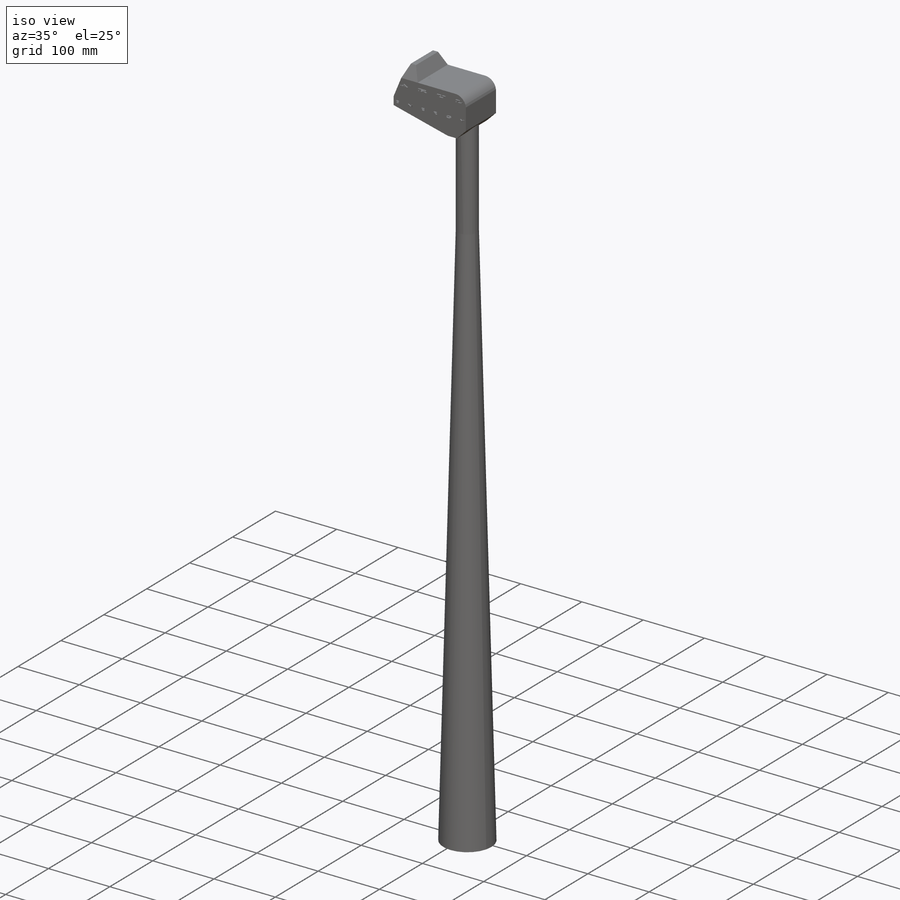
[diagram: iso view]
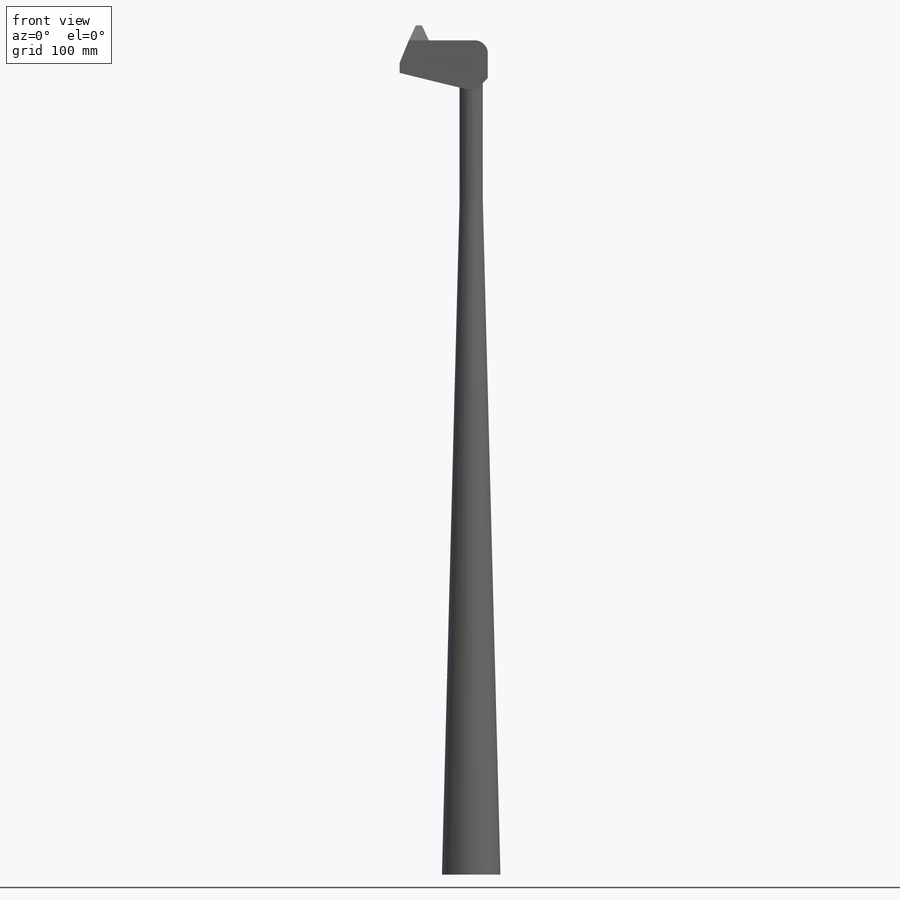
[diagram: front view]
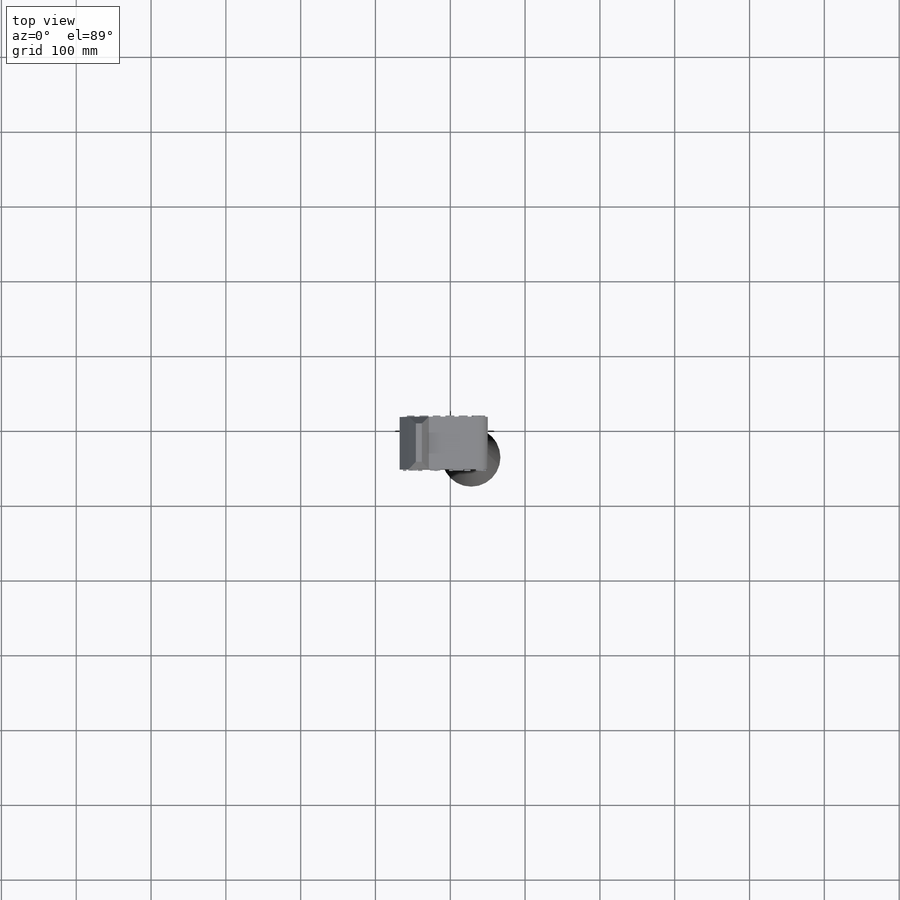
[diagram: top view]
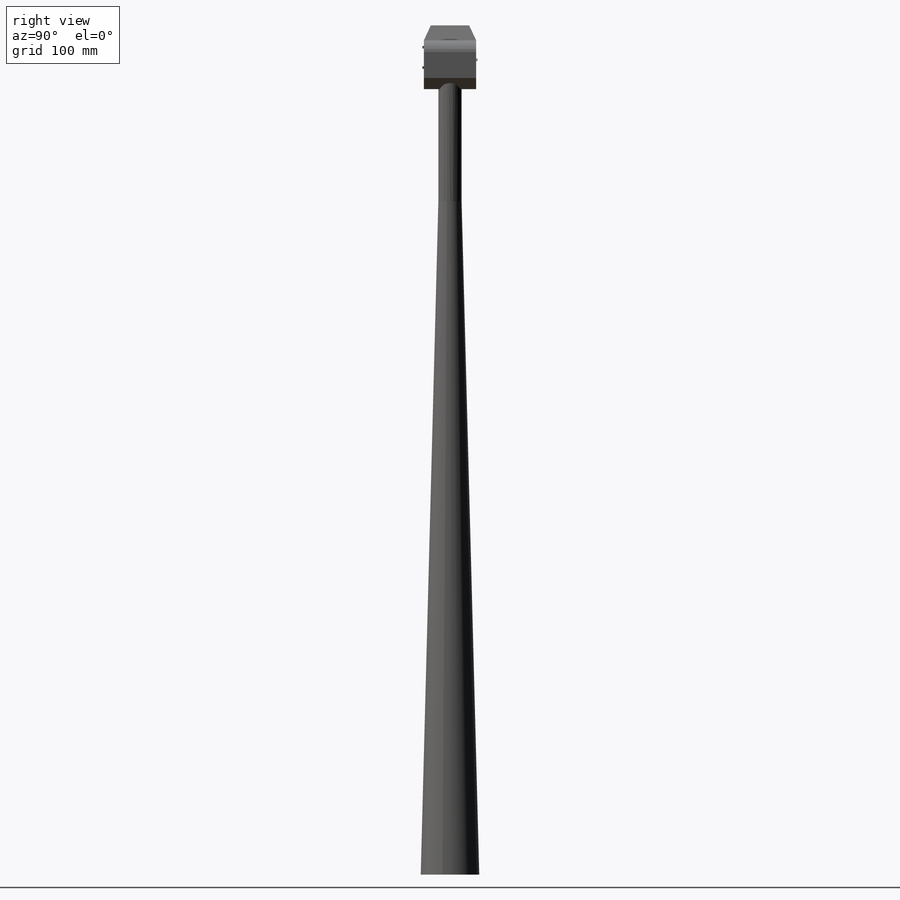
[diagram: right view]
SOLIDWORKS PART (.sldprt)
format: sldprt  version: not decoded by parser v0  size: 573,440 bytes
history: native  units: mm
features: sketch x7, extrude x7, material x1 (+12 scaffold rows collapsed)
feature tree (27):
  scaffold x12  (default folders/planes/origin — collapsed)
  material  "Material <not specified>"
  sketch  "Sketch1"  dims[D1=65.0mm D2=100.0mm]
  extrude  "Boss-Extrude1"  Depth=70mm
  sketch  "Sketch3"
  extrude  "Boss-Extrude2"  Depth=20mm
  sketch  "Sketch4"
  extrude  "Boss-Extrude3"  Depth=150mm
  sketch  "Sketch5"
  extrude  "Boss-Extrude4"  Depth=900mm
  sketch  "Sketch6"
  extrude  "Boss-Extrude5"  Depth=2mm
  sketch  "Sketch7"
  extrude  "Boss-Extrude6"  Depth=2mm
  sketch  "Sketch8"
  extrude  "Boss-Extrude7"  Depth=2mm
decode coverage: 8 of 14 modeling features carry decoded parameters
note: suppression state not decoded; provenance and decode notes live in map.json
